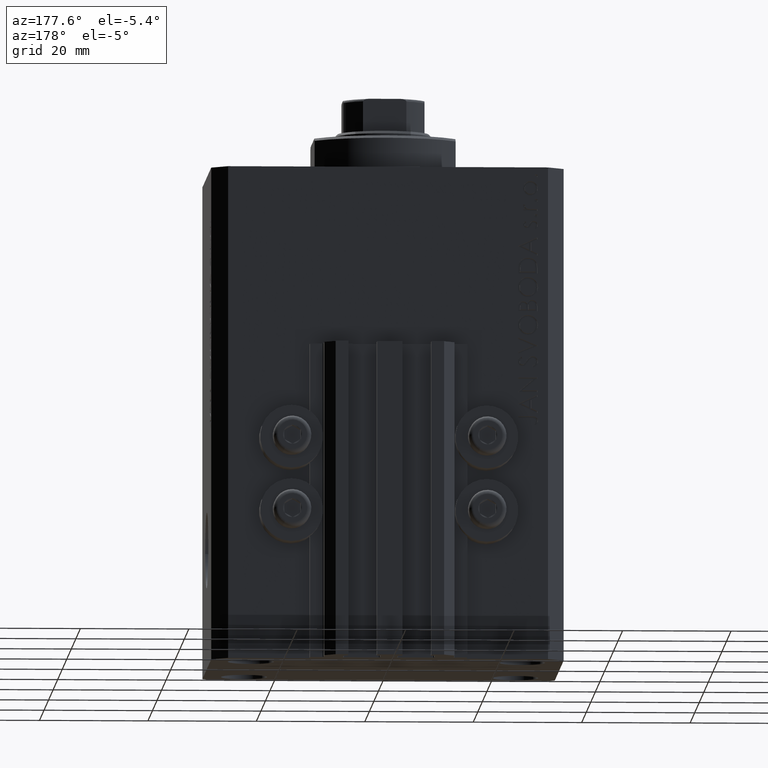
[diagram: clean part render]
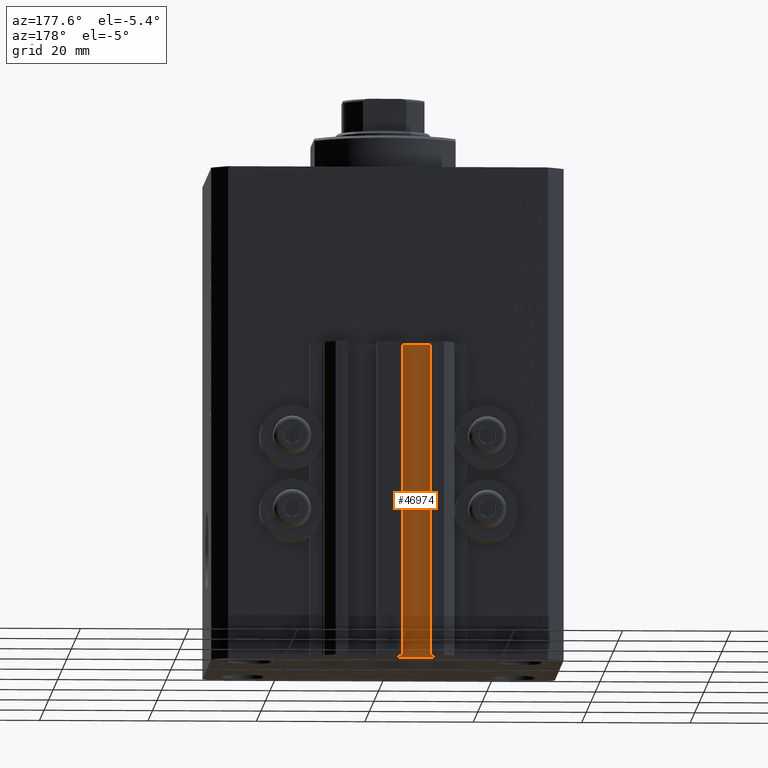
[diagram: same view with one face highlighted and labeled with its STEP entity id]
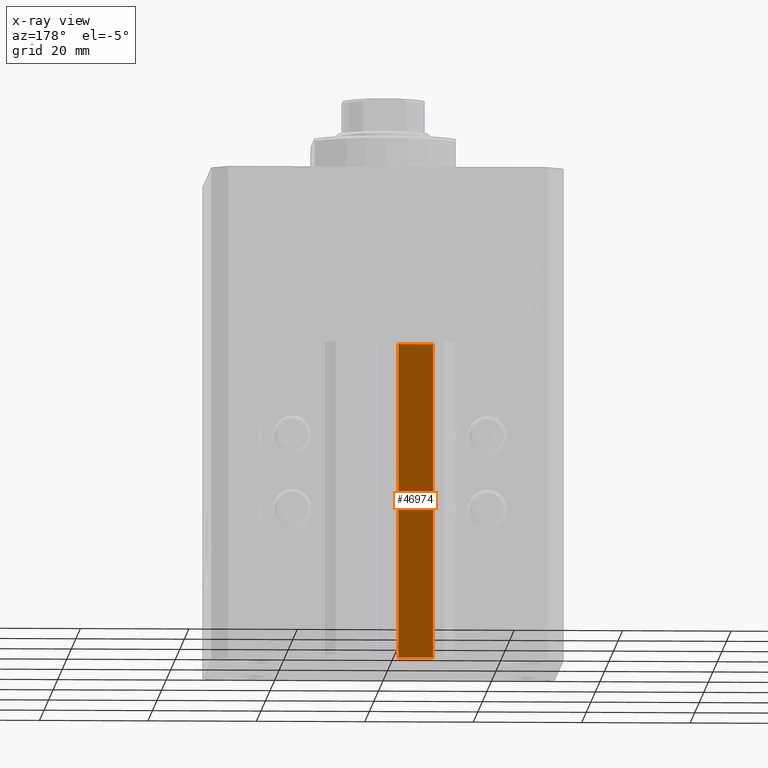
[diagram: x-ray of the same camera — body ghosted, the highlighted face saturated]
A machine part, auxiliary view. The second image highlights one B-rep face of the part: STEP entity #46974.
The next image is the same camera in x-ray: the body ghosted, the highlighted face saturated — about 0% of this face is hidden behind the body in this view.
In plain terms, the highlighted planar face has unit normal (0, 1, 0).
Its self-contained STEP definition (entity closure, byte-faithful):
#434 = CARTESIAN_POINT ( 'NONE',  ( -8.199999999999999289, 24.49999999999949551, -91.00000000000000000 ) ) ;
#1970 = DIRECTION ( 'NONE',  ( 0.000000000000000000, 0.000000000000000000, 1.000000000000000000 ) ) ;
#3089 = CARTESIAN_POINT ( 'NONE',  ( -1.800000000000000933, 24.49999999999949551, -33.00000000000000000 ) ) ;
#4087 = DIRECTION ( 'NONE',  ( 0.000000000000000000, 0.000000000000000000, 1.000000000000000000 ) ) ;
#5248 = CARTESIAN_POINT ( 'NONE',  ( -1.800000000000000933, 24.49999999999949551, -33.00000000000000000 ) ) ;
#5353 = VERTEX_POINT ( 'NONE', #434 ) ;
#5405 = VERTEX_POINT ( 'NONE', #34770 ) ;
#7275 = EDGE_CURVE ( 'NONE', #16919, #33385, #12519, .T. ) ;
#7929 = ORIENTED_EDGE ( 'NONE', *, *, #14487, .T. ) ;
#8699 = DIRECTION ( 'NONE',  ( 0.000000000000000000, 0.000000000000000000, 1.000000000000000000 ) ) ;
#9065 = DIRECTION ( 'NONE',  ( -1.000000000000000000, 0.000000000000000000, 0.000000000000000000 ) ) ;
#12216 = EDGE_CURVE ( 'NONE', #33385, #5405, #41727, .T. ) ;
#12284 = CARTESIAN_POINT ( 'NONE',  ( -1.800000000000000933, 24.49999999999949551, -91.00000000000000000 ) ) ;
#12519 = LINE ( 'NONE', #12284, #28230 ) ;
#13683 = LINE ( 'NONE', #42533, #33346 ) ;
#14487 = EDGE_CURVE ( 'NONE', #5353, #5405, #13683, .T. ) ;
#15044 = CARTESIAN_POINT ( 'NONE',  ( -1.800000000000000933, 24.49999999999949551, -91.00000000000000000 ) ) ;
#16919 = VERTEX_POINT ( 'NONE', #45541 ) ;
#21300 = ORIENTED_EDGE ( 'NONE', *, *, #12216, .F. ) ;
#22155 = CARTESIAN_POINT ( 'NONE',  ( -1.800000000000000933, 24.49999999999949551, -91.00000000000000000 ) ) ;
#22915 = PLANE ( 'NONE',  #34893 ) ;
#25517 = LINE ( 'NONE', #22155, #40720 ) ;
#25792 = DIRECTION ( 'NONE',  ( 0.000000000000000000, 1.000000000000000000, -0.000000000000000000 ) ) ;
#28230 = VECTOR ( 'NONE', #8699, 1000.000000000000000 ) ;
#29073 = ORIENTED_EDGE ( 'NONE', *, *, #37233, .T. ) ;
#30408 = ORIENTED_EDGE ( 'NONE', *, *, #7275, .F. ) ;
#33171 = FACE_OUTER_BOUND ( 'NONE', #35520, .T. ) ;
#33346 = VECTOR ( 'NONE', #1970, 1000.000000000000000 ) ;
#33385 = VERTEX_POINT ( 'NONE', #3089 ) ;
#33825 = DIRECTION ( 'NONE',  ( -1.000000000000000000, 0.000000000000000000, 0.000000000000000000 ) ) ;
#34770 = CARTESIAN_POINT ( 'NONE',  ( -8.199999999999999289, 24.49999999999949551, -33.00000000000000000 ) ) ;
#34893 = AXIS2_PLACEMENT_3D ( 'NONE', #15044, #25792, #4087 ) ;
#35520 = EDGE_LOOP ( 'NONE', ( #21300, #30408, #29073, #7929 ) ) ;
#37233 = EDGE_CURVE ( 'NONE', #16919, #5353, #25517, .T. ) ;
#40720 = VECTOR ( 'NONE', #33825, 1000.000000000000000 ) ;
#41727 = LINE ( 'NONE', #5248, #44863 ) ;
#42533 = CARTESIAN_POINT ( 'NONE',  ( -8.199999999999999289, 24.49999999999949551, -91.00000000000000000 ) ) ;
#44863 = VECTOR ( 'NONE', #9065, 1000.000000000000000 ) ;
#45541 = CARTESIAN_POINT ( 'NONE',  ( -1.800000000000000933, 24.49999999999949551, -91.00000000000000000 ) ) ;
#46974 = ADVANCED_FACE ( 'NONE', ( #33171 ), #22915, .T. ) ;